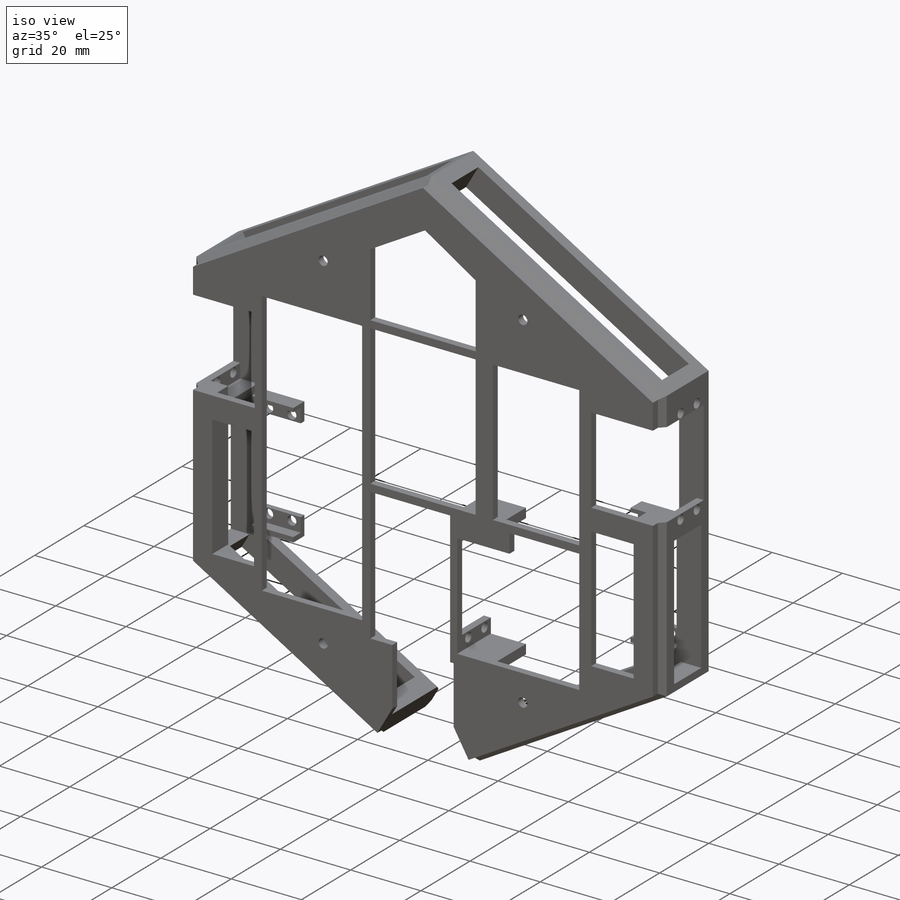
[diagram: iso view]
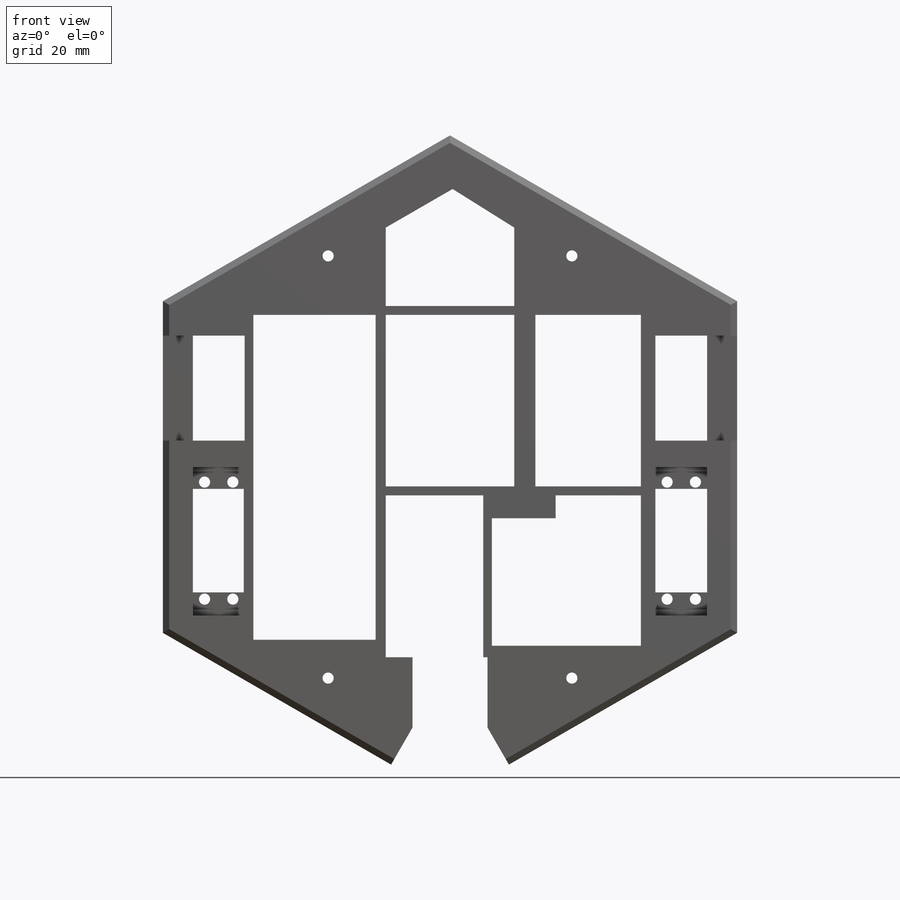
[diagram: front view]
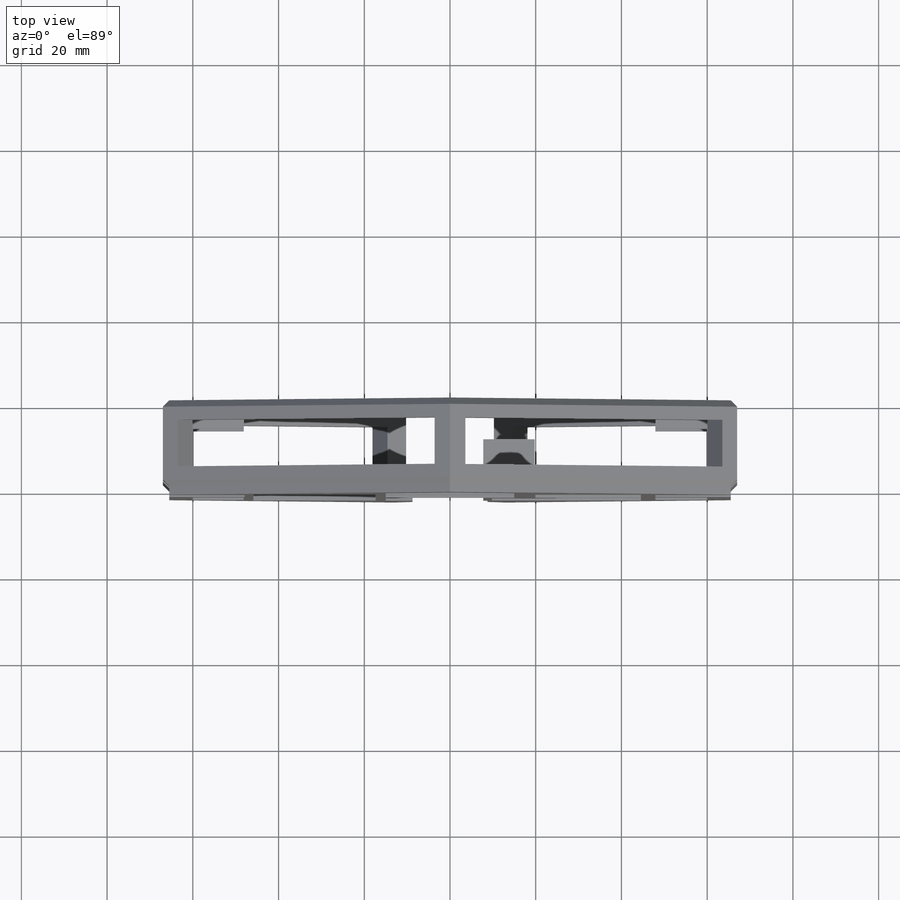
[diagram: top view]
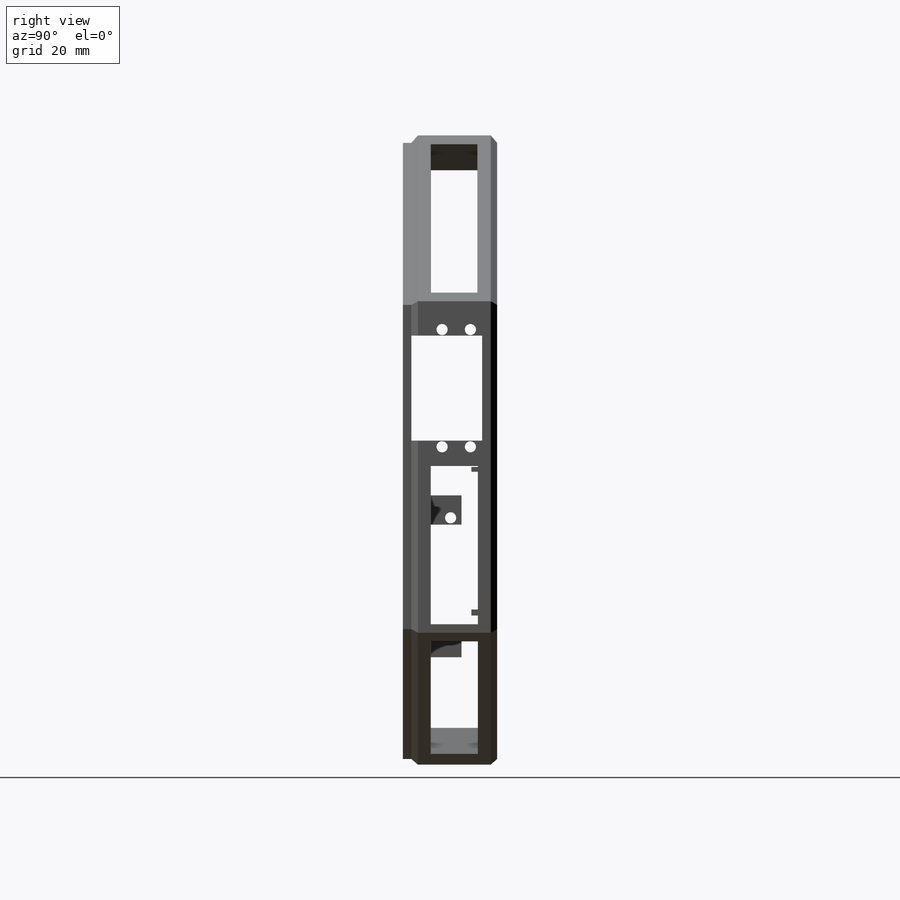
[diagram: right view]
SOLIDWORKS PART (.sldprt)
format: sldprt  version: not decoded by parser v0  size: 1,164,800 bytes
history: native  units: mm
features: sketch x35, cut_extrude x27, extrude x8, plane x4, mirror x4, material x1, chamfer x1 (+8 scaffold rows collapsed)
feature tree (88):
  scaffold x8  (default folders/planes/origin — collapsed)
  material  "Caoutchouc"
  plane  "Plan de face"
  plane  "Plan de dessus"
  plane  "Plan de droite"
  sketch  "Esquisse1"  dims[c1.D1=~80.212626mm c1.D2=~75.254484mm c2.D1=80.0mm c2.D2=160.0mm c2.D3=10.0mm c2.D4=10.0mm c2.D5=20.0mm c2.D6=10.0mm c3.D3=10.0mm c3.D4=10.0mm c3.D5=10.0mm c3.D6=10.0mm c3.D7=10.0mm c3.D8=10.0mm c3.D9=0.0mm c3.D10=60.0mm c3.D11=40.0mm c4.D11=270.0deg c5.D11=40.0mm c6.D11=225.0deg c6.D12=80.0mm c7.D12=225.0deg c8.D12=30.0mm c9.D12=135.0deg c10.D12=~56.568542mm c11.D12=225.0deg c12.D12=80.0mm c13.D12=225.0deg c14.D12=80.0mm c15.D12=135.0deg c15.D1=~50.710678mm c16.D1=270.0deg c17.D1=~71.715729mm c18.D1=225.0deg c19.D1=~50.710678mm c20.D1=90.0deg c21.D1=~50.710678mm c22.D1=120.0deg c22.D2=~50.710678mm c23.D2=120.0deg c23.D3=7.0mm c23.D4=7.0mm c23.D5=7.0mm c23.D6=60.0mm c23.D7=154.0mm]
  extrude  "Boss.-Extru.1"  Depth=20mm
  chamfer  "Chanfrein1"  Distance=1.5mm Angle=45deg
  sketch  "Esquisse4"  dims[c1.D1=2.0mm c1.D2=2.0mm c1.D3=2.0mm c1.D4=24.48mm c2.D3=12.065mm c2.D1=0.4mm c2.D2=2.0mm c3.D3=5.0mm c3.D5=~17.969631mm c3.D1=2.0mm c3.D2=7.0mm c4.D3=~31.912485mm c5.D3=90.0deg c6.D3=20.0mm c6.D4=24.5mm c6.D2=4.0mm]
  cut_extrude  "Enlèv. mat.-Extru.1"  Depth=10mm
  plane  "Plan1"
  sketch  "Esquisse8"  dims[D1=4.0mm D2=3.05mm D3=3.05mm D4=4.15mm]
  cut_extrude  "Enlèv. mat.-Extru.3"  [1 undecoded]
  sketch  "Esquisse9"  dims[D1=4.15mm D2=3.0mm D3=4.0mm]
  cut_extrude  "Enlèv. mat.-Extru.4"  [1 undecoded]
  sketch  "Esquisse10"  dims[D1=4.5mm D2=3.0mm D3=3.0mm D4=~54.447222mm]
  sketch  "Esquisse11"  dims[D1=4.0mm D2=3.0mm]
  cut_extrude  "Enlèv. mat.-Extru.5"  [1 undecoded]
  cut_extrude  "Enlèv. mat.-Extru.6"  [1 undecoded]
  sketch  "Esquisse13"
  extrude  "Boss.-Extru.2"  Depth=2mm
  sketch  "Esquisse18"
  extrude  "Boss.-Extru.5"  Depth=30mm
  mirror  "Symétrie5"
  sketch  "Esquisse20"
  cut_extrude  "Enlèv. mat.-Extru.9"  Depth=10mm
  sketch  "Esquisse19"  dims[D1=0.2mm D2=0.2mm D3=0.2mm D4=0.2mm]
  cut_extrude  "Enlèv. mat.-Extru.8"  [1 undecoded]
  sketch  "Esquisse21"  dims[D1=2.6mm]
  sketch  "Esquisse22"
  cut_extrude  "Enlèv. mat.-Extru.10"  [1 undecoded]
  sketch  "Esquisse23"
  extrude  "Boss.-Extru.6"  [1 undecoded]
  cut_extrude  "Enlèv. mat.-Extru.11"  [1 undecoded]
  sketch  "Esquisse24"  dims[D1=4.0mm]
  cut_extrude  "Enlèv. mat.-Extru.12"  Depth=3mm
  mirror  "Symétrie13"
  sketch  "Esquisse25"
  cut_extrude  "Enlèv. mat.-Extru.13"  [1 undecoded]
  sketch  "Esquisse26"
  extrude  "Boss.-Extru.7"  [1 undecoded]
  sketch  "Esquisse27"  dims[D1=2.6mm]
  cut_extrude  "Enlèv. mat.-Extru.14"  [1 undecoded]
  mirror  "Symétrie14"
  sketch  "Esquisse28"
  cut_extrude  "Enlèv. mat.-Extru.15"  [1 undecoded]
  sketch  "Esquisse29"  dims[c1.D1=~3.813688mm c2.D1=90.0deg c3.D1=4.0mm]
  cut_extrude  "Enlèv. mat.-Extru.16"  Depth=5mm
  mirror  "Symétrie15"
  sketch  "Esquisse30"  dims[D1=7.0mm D2=7.0mm D3=10.0mm]
  extrude  "Boss.-Extru.8"  [1 undecoded]
  sketch  "Esquisse31"
  cut_extrude  "Enlèv. mat.-Extru.18"  [1 undecoded]
  sketch  "Esquisse32"  dims[D1=0.2mm D2=0.2mm]
  cut_extrude  "Enlèv. mat.-Extru.19"  [1 undecoded]
  sketch  "Esquisse33"  dims[D1=2.0mm]
  cut_extrude  "Enlèv. mat.-Extru.20"  [1 undecoded]
  sketch  "Esquisse34"
  extrude  "Boss.-Extru.9"  Depth=10mm
  sketch  "Esquisse35"  dims[D1=2.6mm]
  cut_extrude  "Enlèv. mat.-Extru.21"  Depth=10mm
  sketch  "Esquisse36"
  cut_extrude  "Enlèv. mat.-Extru.22"  Depth=10mm
  sketch  "Esquisse37"  dims[D1=2.6mm D2=34.641mm D3=~34.641032mm]
  cut_extrude  "Enlèv. mat.-Extru.23"  Depth=5mm
  sketch  "Esquisse38"  dims[c1.D1=30.0mm c1.D2=40.0mm c2.D1=15.0mm]
  cut_extrude  "Enlèv. mat.-Extru.24"  [1 undecoded]
  sketch  "Esquisse39"  dims[D1=2.0mm D2=2.0mm]
  cut_extrude  "Enlèv. mat.-Extru.25"  [1 undecoded]
  sketch  "Esquisse40"  dims[D1=2.0mm D2=2.0mm]
  cut_extrude  "Enlèv. mat.-Extru.26"  [1 undecoded]
  sketch  "Esquisse41"  dims[D1=15.0mm]
  cut_extrude  "Enlèv. mat.-Extru.27"  Depth=10mm
  sketch  "Esquisse42"  dims[D1=15.0mm]
  cut_extrude  "Enlèv. mat.-Extru.28"  Depth=10mm
  sketch  "Esquisse43"
  cut_extrude  "Enlèv. mat.-Extru.29"  Depth=10mm
  sketch  "Esquisse44"  dims[D1=5.0mm D2=5.0mm]
  extrude  "Boss.-Extru.10"  [1 undecoded]
  sketch  "Esquisse45"
  cut_extrude  "Enlèv. mat.-Extru.33"  Depth=10mm
decode coverage: 38 of 75 modeling features carry decoded parameters
note: ~ marks probable driven/reference dimensions
note: 20 parameter values undecoded
summary: no parameter record found for 20 features
note: suppression state not decoded; provenance and decode notes live in map.json
